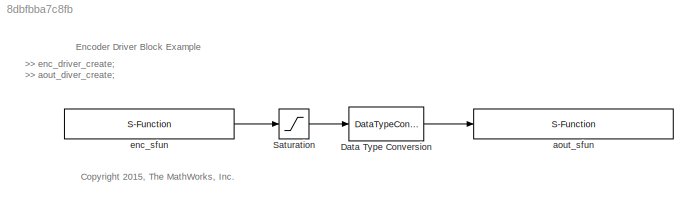
MODEL slx_8dbfbba7c8fb
KIND model
BLOCK [DataTypeConversion] Data Type Conversion
  RndMeth = Floor
  SaturateOnIntegerOverflow = off
BLOCK [Saturate] Saturation
  InputPortMap = u0
  LockScale = on
  LowerLimit = 0
  Ports = [1, 1]
  UpperLimit = 255
BLOCK [S-Function] aout_sfun
  FunctionName = aout_sfun
  Parameters = SParameter1
  Ports = [1]
BLOCK [S-Function] enc_sfun
  FunctionName = enc_sfun
  Parameters = SParameter1, SParameter2, SParameter3
  Ports = [0, 1]
ANNOTATION (root): >> enc_driver_create; >> aout_diver_create;
ANNOTATION (root): <copyright redacted>
ANNOTATION (root): Encoder Driver Block Example
LINE Data Type Conversion:1 -> aout_sfun:1
LINE Saturation:1 -> Data Type Conversion:1
LINE enc_sfun:1 -> Saturation:1
